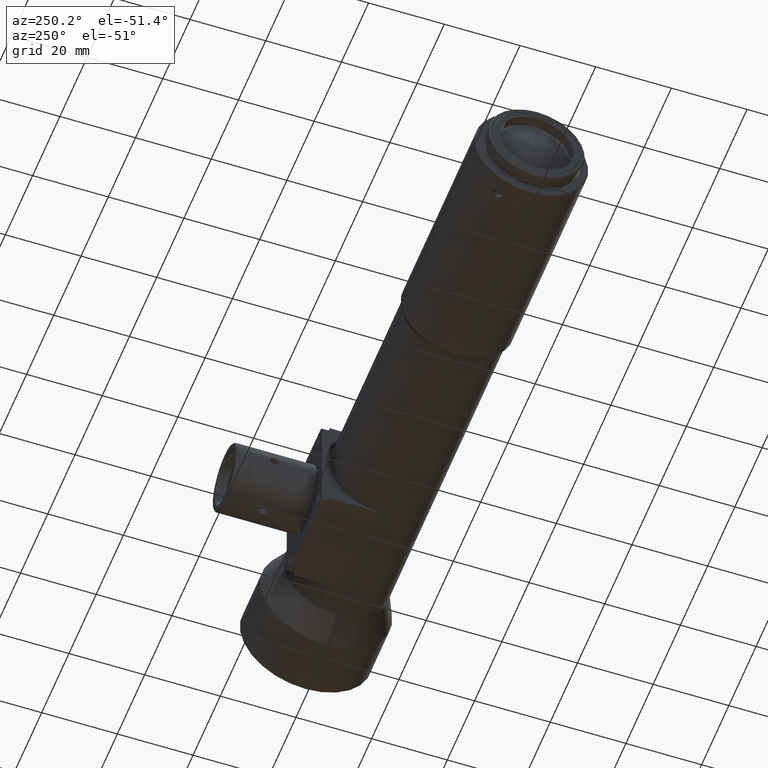
[diagram: clean part render]
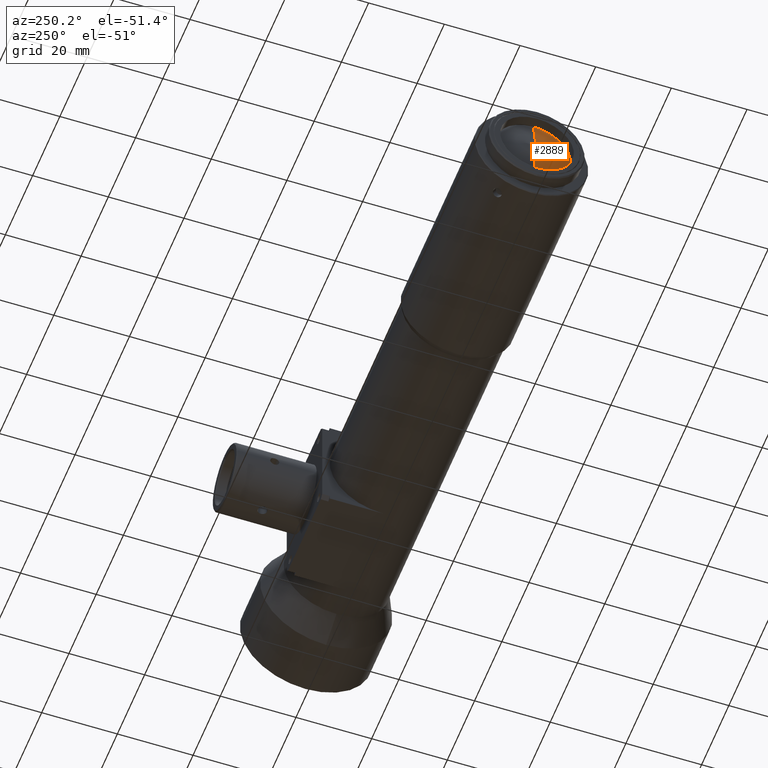
[diagram: same view with one face highlighted and labeled with its STEP entity id]
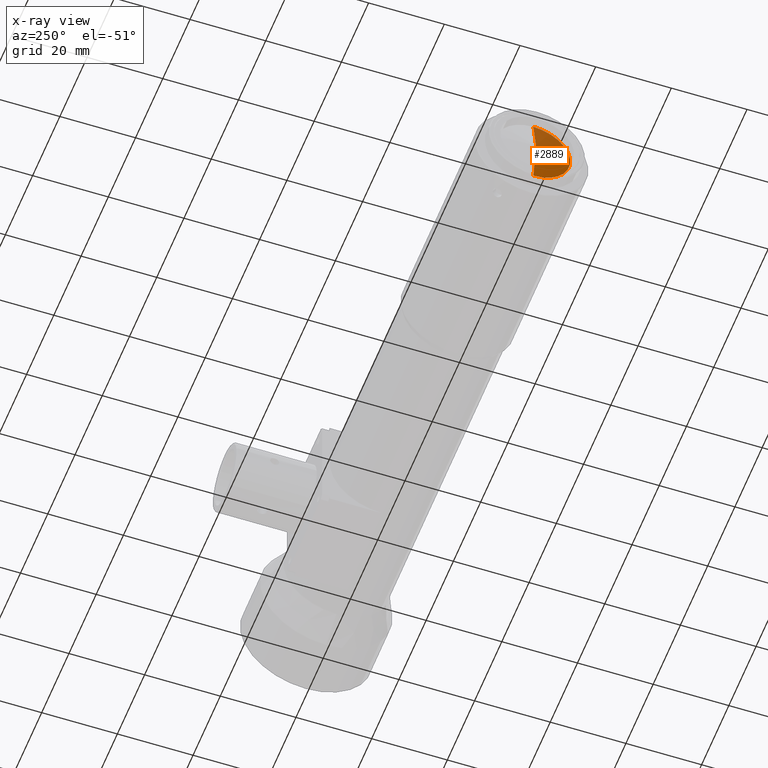
[diagram: x-ray of the same camera — body ghosted, the highlighted face saturated]
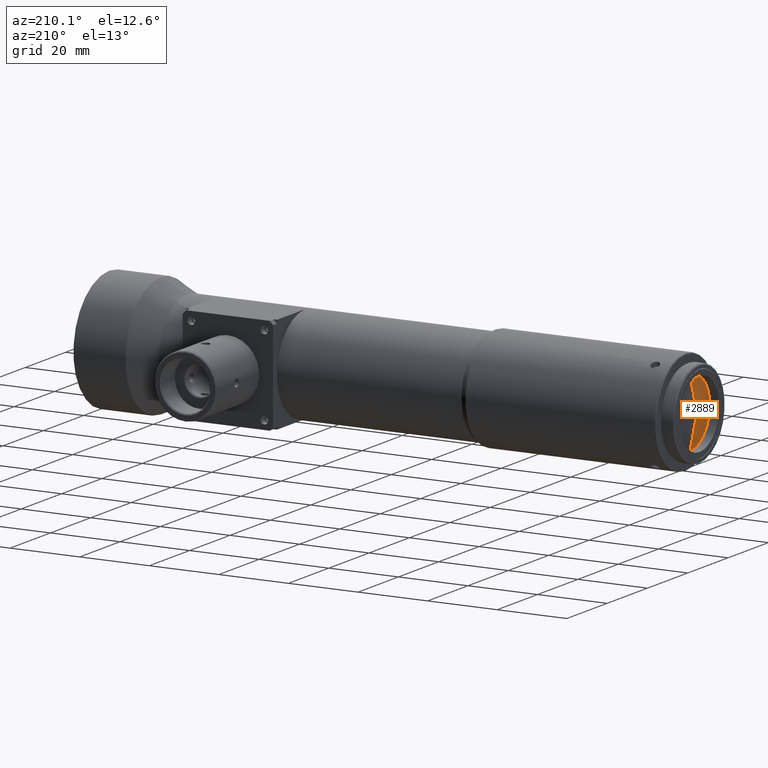
[diagram: same view with one face highlighted and labeled with its STEP entity id]
A machine part, auxiliary view. The second image highlights one B-rep face of the part: STEP entity #2889.
The next image is the same camera in x-ray: the body ghosted, the highlighted face saturated — about 0% of this face is hidden behind the body in this view.
A second angle (auxiliary view) of the same face is appended — the face is thin or edge-on in the first view.
In plain terms, the highlighted conical surface has half-angle 78.766 deg.
Its self-contained STEP definition (entity closure, byte-faithful):
#56 = CIRCLE ( 'NONE', #912, 9.750000000000000000 ) ;
#266 = FACE_OUTER_BOUND ( 'NONE', #1450, .T. ) ;
#272 = CONICAL_SURFACE ( 'NONE', #465, 11.57819894044948400, 1.374728092933268400 ) ;
#373 = LINE ( 'NONE', #3477, #378 ) ;
#378 = VECTOR ( 'NONE', #3478, 1000.000000000000100 ) ;
#465 = AXIS2_PLACEMENT_3D ( 'NONE', #3394, #3372, #3367 ) ;
#475 = EDGE_CURVE ( 'NONE', #3928, #3924, #1001, .T. ) ;
#797 = EDGE_CURVE ( 'NONE', #4095, #4103, #1242, .T. ) ;
#817 = EDGE_CURVE ( 'NONE', #4095, #3924, #373, .T. ) ;
#823 = EDGE_CURVE ( 'NONE', #4103, #3928, #56, .T. ) ;
#862 = AXIS2_PLACEMENT_3D ( 'NONE', #2749, #2748, #2747 ) ;
#912 = AXIS2_PLACEMENT_3D ( 'NONE', #3600, #3601, #3602 ) ;
#1001 = CIRCLE ( 'NONE', #862, 9.750000000000000000 ) ;
#1229 = VECTOR ( 'NONE', #3746, 1000.000000000000100 ) ;
#1242 = LINE ( 'NONE', #3737, #1229 ) ;
#1450 = EDGE_LOOP ( 'NONE', ( #1873, #1782, #1778, #1693 ) ) ;
#1693 = ORIENTED_EDGE ( 'NONE', *, *, #823, .F. ) ;
#1778 = ORIENTED_EDGE ( 'NONE', *, *, #475, .F. ) ;
#1782 = ORIENTED_EDGE ( 'NONE', *, *, #817, .T. ) ;
#1873 = ORIENTED_EDGE ( 'NONE', *, *, #797, .F. ) ;
#2747 = DIRECTION ( 'NONE',  ( 0.0000000000000000000, 0.0000000000000000000, -1.000000000000000000 ) ) ;
#2748 = DIRECTION ( 'NONE',  ( 1.000000000000000000, 0.0000000000000000000, 0.0000000000000000000 ) ) ;
#2749 = CARTESIAN_POINT ( 'NONE',  ( -134.2731167757762300, 0.0000000000000000000, 0.0000000000000000000 ) ) ;
#2889 = ADVANCED_FACE ( 'NONE', ( #266 ), #272, .T. ) ;
#3247 = CARTESIAN_POINT ( 'NONE',  ( -134.2731167757762300, 0.0000000000000000000, -9.749999999999982200 ) ) ;
#3333 = CARTESIAN_POINT ( 'NONE',  ( -134.2731167757762300, -9.119727449178265400, 3.448633244156949400 ) ) ;
#3367 = DIRECTION ( 'NONE',  ( 0.0000000000000000000, 0.0000000000000000000, -1.000000000000000000 ) ) ;
#3372 = DIRECTION ( 'NONE',  ( 1.000000000000000000, 0.0000000000000000000, 0.0000000000000000000 ) ) ;
#3394 = CARTESIAN_POINT ( 'NONE',  ( -133.9100000000000000, 0.0000000000000000000, 0.0000000000000000000 ) ) ;
#3477 = CARTESIAN_POINT ( 'NONE',  ( -133.9100000000000000, 0.0000000000000000000, -11.57819894044948400 ) ) ;
#3478 = DIRECTION ( 'NONE',  ( 0.1948144125478214200, 0.0000000000000000000, -0.9808401218667837100 ) ) ;
#3600 = CARTESIAN_POINT ( 'NONE',  ( -134.2731167757762300, 0.0000000000000000000, 0.0000000000000000000 ) ) ;
#3601 = DIRECTION ( 'NONE',  ( 1.000000000000000000, 0.0000000000000000000, 0.0000000000000000000 ) ) ;
#3602 = DIRECTION ( 'NONE',  ( 0.0000000000000000000, 0.0000000000000000000, -1.000000000000000000 ) ) ;
#3737 = CARTESIAN_POINT ( 'NONE',  ( -133.9100000000000000, 1.417920427231273600E-015, 11.57819894044948400 ) ) ;
#3746 = DIRECTION ( 'NONE',  ( 0.1948144125478214200, 1.201182715719456300E-016, 0.9808401218667837100 ) ) ;
#3807 = CARTESIAN_POINT ( 'NONE',  ( -134.2731167757762300, 1.194030629168667300E-015, 9.749999999999982200 ) ) ;
#3808 = CARTESIAN_POINT ( 'NONE',  ( -136.2096612543260500, 0.0000000000000000000, 0.0000000000000000000 ) ) ;
#3924 = VERTEX_POINT ( 'NONE', #3247 ) ;
#3928 = VERTEX_POINT ( 'NONE', #3333 ) ;
#4095 = VERTEX_POINT ( 'NONE', #3808 ) ;
#4103 = VERTEX_POINT ( 'NONE', #3807 ) ;